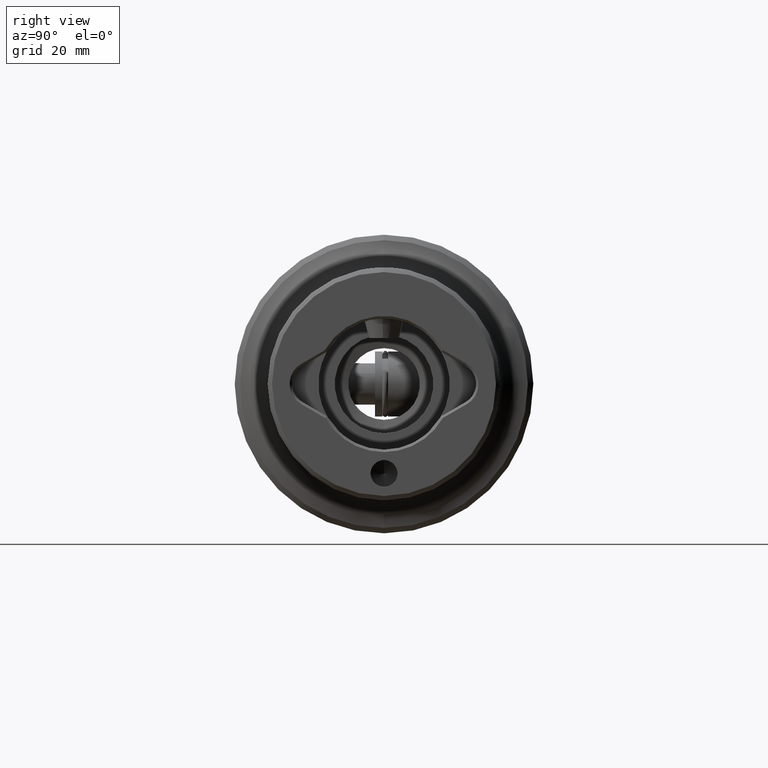
[diagram: clean part render]
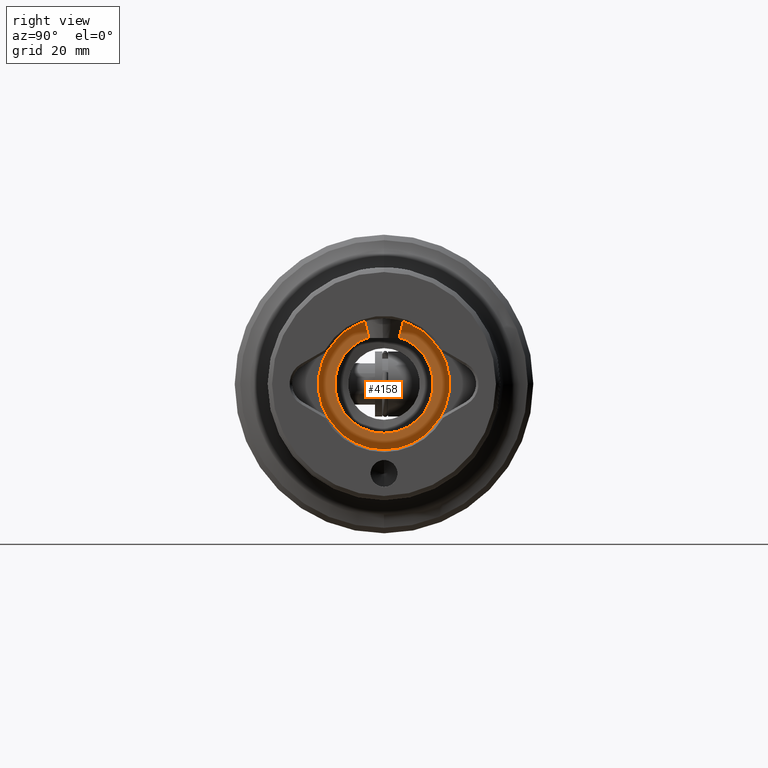
[diagram: same view with one face highlighted and labeled with its STEP entity id]
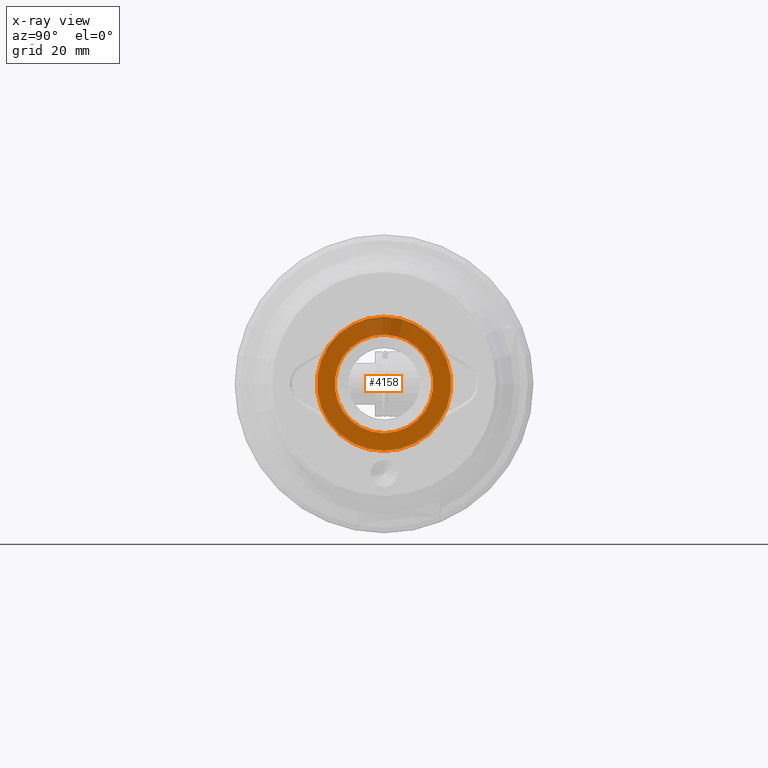
[diagram: x-ray of the same camera — body ghosted, the highlighted face saturated]
A machine part, right view. The second image highlights one B-rep face of the part: STEP entity #4158.
The next image is the same camera in x-ray: the body ghosted, the highlighted face saturated — about 19% of this face is hidden behind the body in this view.
In plain terms, the highlighted planar face has unit normal (-1, 0, 0).
Its self-contained STEP definition (entity closure, byte-faithful):
#1 = EDGE_LOOP ( 'NONE', ( #20, #2970 ) ) ;
#20 = ORIENTED_EDGE ( 'NONE', *, *, #4369, .T. ) ;
#279 = DIRECTION ( 'NONE',  ( 0.0000000000000000000, 0.0000000000000000000, 1.000000000000000000 ) ) ;
#468 = CARTESIAN_POINT ( 'NONE',  ( 71.00000000000001400, 0.0000000000000000000, 0.0000000000000000000 ) ) ;
#528 = PLANE ( 'NONE',  #848 ) ;
#848 = AXIS2_PLACEMENT_3D ( 'NONE', #4593, #3387, #918 ) ;
#869 = DIRECTION ( 'NONE',  ( 0.0000000000000000000, 0.0000000000000000000, -1.000000000000000000 ) ) ;
#918 = DIRECTION ( 'NONE',  ( 0.0000000000000000000, 0.0000000000000000000, 1.000000000000000000 ) ) ;
#952 = FACE_OUTER_BOUND ( 'NONE', #1091, .T. ) ;
#998 = ORIENTED_EDGE ( 'NONE', *, *, #1689, .T. ) ;
#1091 = EDGE_LOOP ( 'NONE', ( #3910, #998 ) ) ;
#1195 = VERTEX_POINT ( 'NONE', #3480 ) ;
#1462 = VERTEX_POINT ( 'NONE', #2312 ) ;
#1642 = DIRECTION ( 'NONE',  ( 1.000000000000000000, 0.0000000000000000000, 0.0000000000000000000 ) ) ;
#1689 = EDGE_CURVE ( 'NONE', #5198, #2571, #5163, .T. ) ;
#1748 = AXIS2_PLACEMENT_3D ( 'NONE', #4118, #1642, #4523 ) ;
#1776 = DIRECTION ( 'NONE',  ( -1.000000000000000000, 0.0000000000000000000, 0.0000000000000000000 ) ) ;
#1894 = FACE_BOUND ( 'NONE', #1, .T. ) ;
#2156 = EDGE_CURVE ( 'NONE', #1462, #1195, #4201, .T. ) ;
#2283 = CIRCLE ( 'NONE', #3985, 11.25000000000000200 ) ;
#2312 = CARTESIAN_POINT ( 'NONE',  ( 71.00000000000001400, 1.010333609296566000E-015, 8.249999999999994700 ) ) ;
#2571 = VERTEX_POINT ( 'NONE', #2959 ) ;
#2733 = DIRECTION ( 'NONE',  ( -1.000000000000000000, 0.0000000000000000000, 0.0000000000000000000 ) ) ;
#2959 = CARTESIAN_POINT ( 'NONE',  ( 71.00000000000001400, 0.0000000000000000000, 11.25000000000000200 ) ) ;
#2970 = ORIENTED_EDGE ( 'NONE', *, *, #2156, .T. ) ;
#3339 = DIRECTION ( 'NONE',  ( 1.000000000000000000, 0.0000000000000000000, 0.0000000000000000000 ) ) ;
#3387 = DIRECTION ( 'NONE',  ( -1.000000000000000000, 0.0000000000000000000, 0.0000000000000000000 ) ) ;
#3480 = CARTESIAN_POINT ( 'NONE',  ( 71.00000000000001400, 0.0000000000000000000, -8.249999999999994700 ) ) ;
#3886 = AXIS2_PLACEMENT_3D ( 'NONE', #5204, #2733, #279 ) ;
#3910 = ORIENTED_EDGE ( 'NONE', *, *, #4084, .T. ) ;
#3985 = AXIS2_PLACEMENT_3D ( 'NONE', #468, #3339, #869 ) ;
#4084 = EDGE_CURVE ( 'NONE', #2571, #5198, #2283, .T. ) ;
#4118 = CARTESIAN_POINT ( 'NONE',  ( 71.00000000000001400, 0.0000000000000000000, 0.0000000000000000000 ) ) ;
#4139 = AXIS2_PLACEMENT_3D ( 'NONE', #4253, #1776, #4668 ) ;
#4158 = ADVANCED_FACE ( 'NONE', ( #1894, #952 ), #528, .F. ) ;
#4201 = CIRCLE ( 'NONE', #4139, 8.249999999999994700 ) ;
#4253 = CARTESIAN_POINT ( 'NONE',  ( 71.00000000000001400, 0.0000000000000000000, 0.0000000000000000000 ) ) ;
#4369 = EDGE_CURVE ( 'NONE', #1195, #1462, #4534, .T. ) ;
#4414 = CARTESIAN_POINT ( 'NONE',  ( 71.00000000000001400, 1.377727649040772600E-015, -11.25000000000000200 ) ) ;
#4523 = DIRECTION ( 'NONE',  ( 0.0000000000000000000, 0.0000000000000000000, -1.000000000000000000 ) ) ;
#4534 = CIRCLE ( 'NONE', #3886, 8.249999999999994700 ) ;
#4593 = CARTESIAN_POINT ( 'NONE',  ( 71.00000000000001400, 6.000000000000005300, 0.0000000000000000000 ) ) ;
#4668 = DIRECTION ( 'NONE',  ( 0.0000000000000000000, 0.0000000000000000000, 1.000000000000000000 ) ) ;
#5163 = CIRCLE ( 'NONE', #1748, 11.25000000000000200 ) ;
#5198 = VERTEX_POINT ( 'NONE', #4414 ) ;
#5204 = CARTESIAN_POINT ( 'NONE',  ( 71.00000000000001400, 0.0000000000000000000, 0.0000000000000000000 ) ) ;